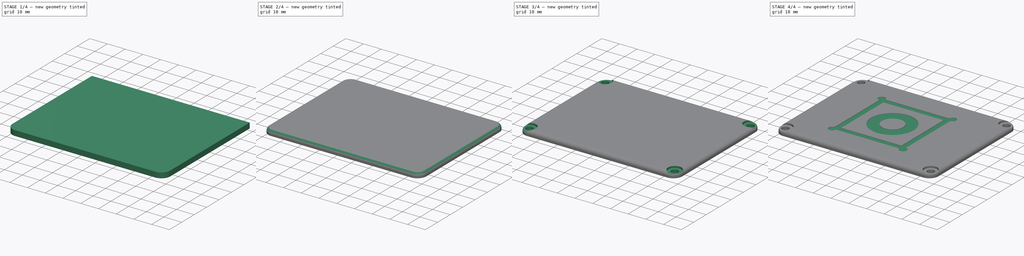
[diagram: build sequence overview — one tinted view per stage of 4, left to right]
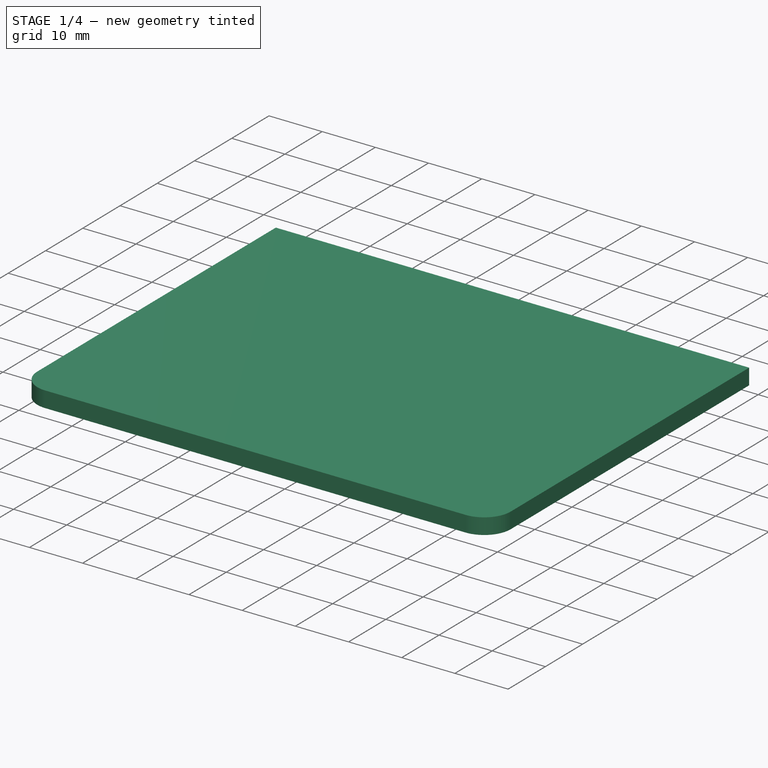
[diagram: stage 1 of 4 — iso view after this stage's code; geometry added in this stage tinted green]
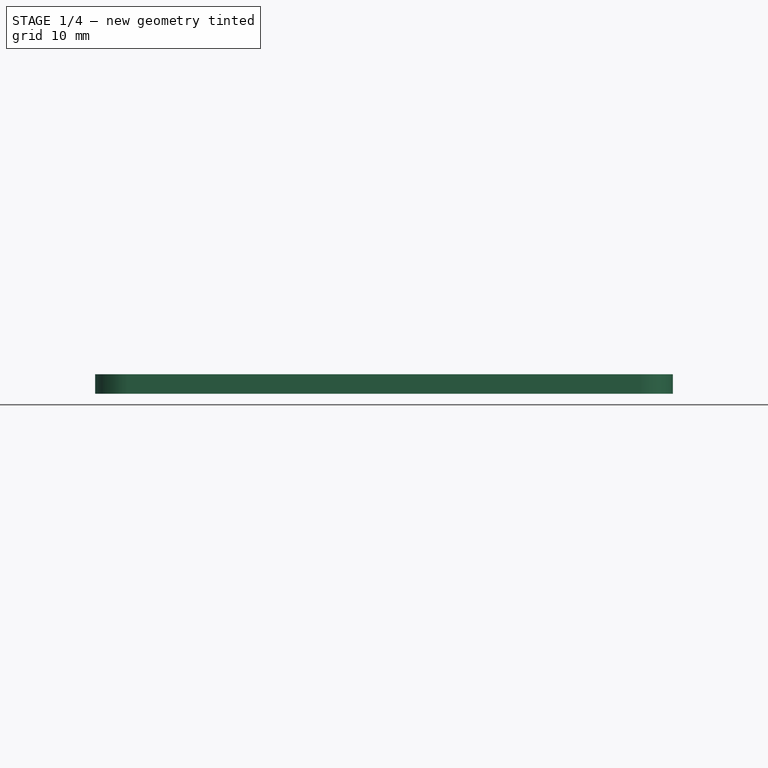
[diagram: stage 1 of 4 — front view after this stage's code; geometry added in this stage tinted green]
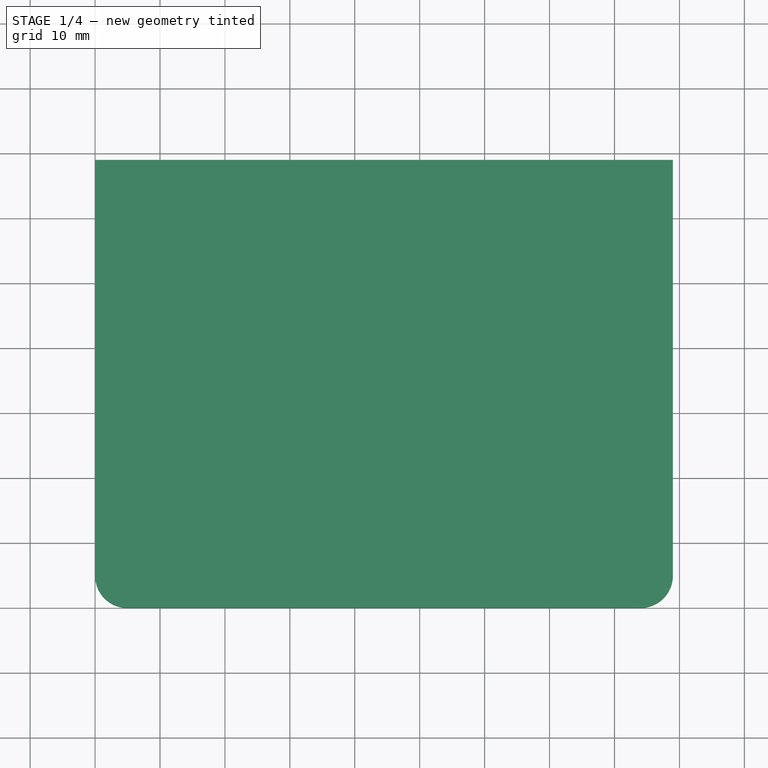
[diagram: stage 1 of 4 — top view after this stage's code; geometry added in this stage tinted green]
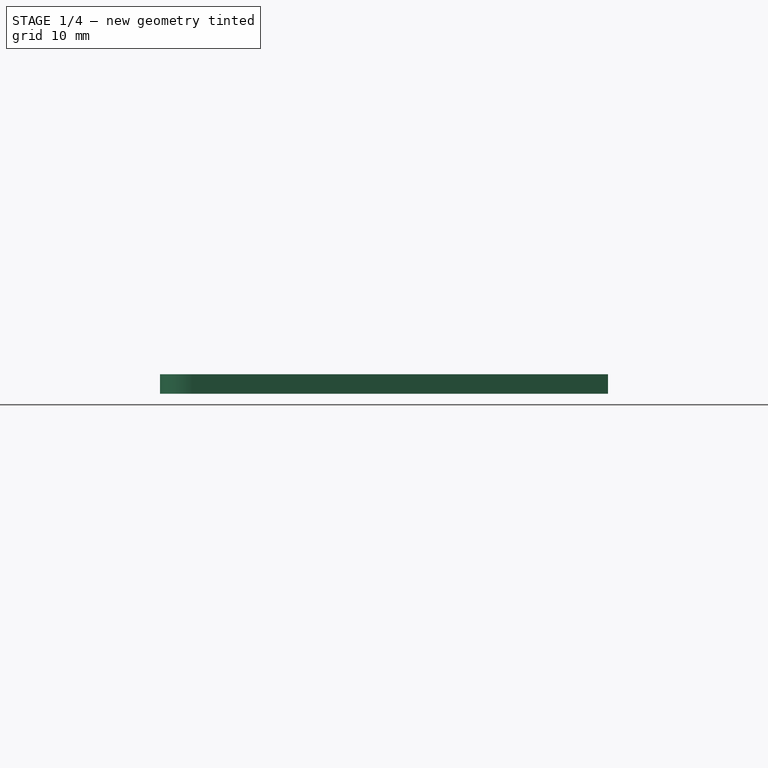
[diagram: stage 1 of 4 — right view after this stage's code; geometry added in this stage tinted green]
FCSTD DOCUMENT  (FreeCAD 0.16R)
Label: top
License: All rights reserved
LicenseURL: http://en.wikipedia.org/wiki/All_rights_reserved
objects: Sketcher::SketchObject×7, PartDesign::Fillet×5, PartDesign::Pocket×5, PartDesign::Pad×2, Part::Box×1, Part::Feature×1
note: 28 computed .brp shape members not serialized (recipe doc carries the construction recipe); baked Part::Feature solids carry a one-line shape summary decoded from their .brp

FEATURE [Part::Box] Box  label="Куб"
  Height = 3
  Length = 89
  Width = 69
FEATURE [PartDesign::Fillet] Fillet
  Base = -> Box [Edge5]
  Radius = 5
FEATURE [PartDesign::Fillet] Fillet001
  Base = -> Fillet [Edge15]
  Radius = 5
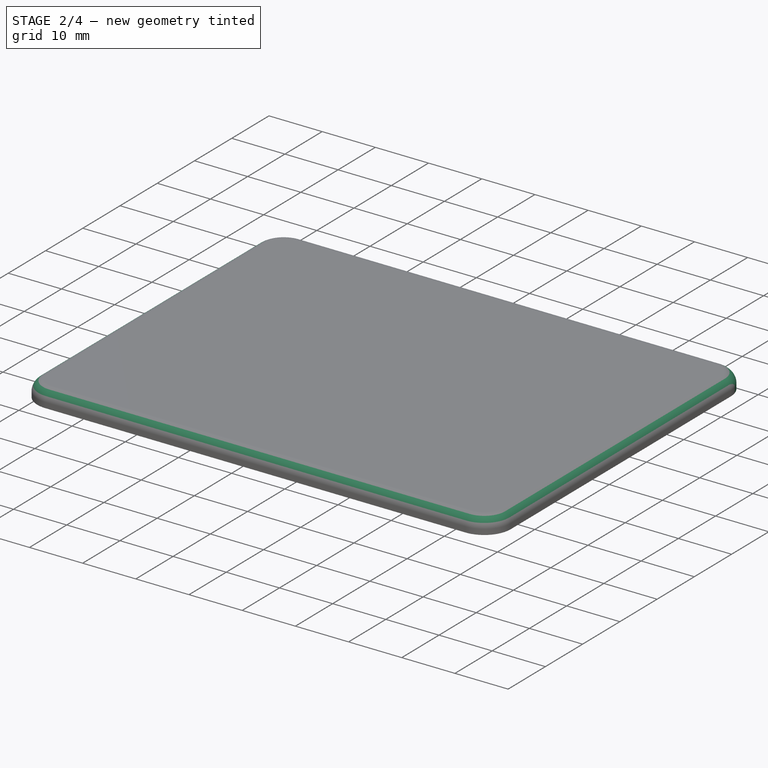
[diagram: stage 2 of 4 — iso view after this stage's code; geometry added in this stage tinted green]
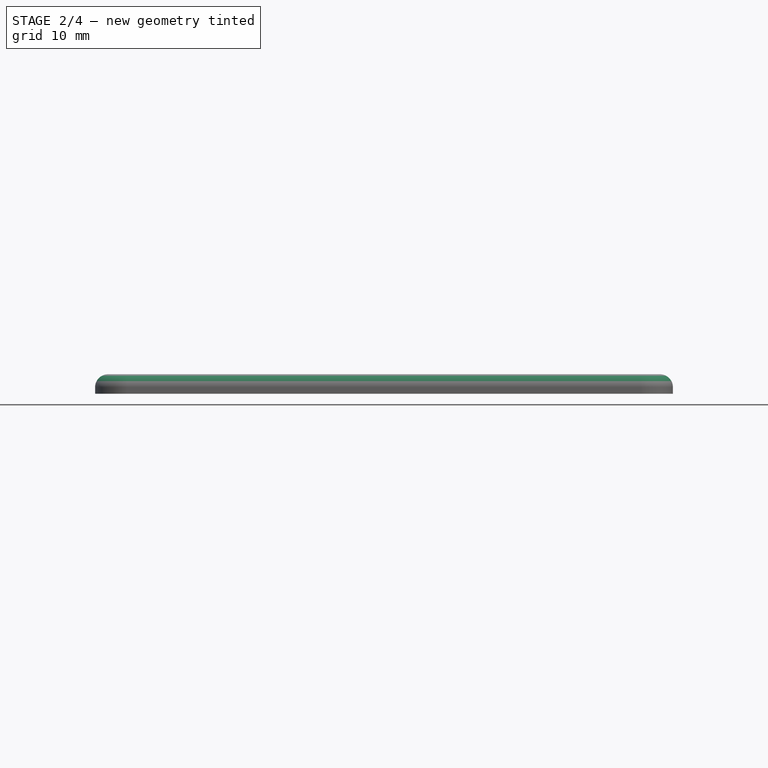
[diagram: stage 2 of 4 — front view after this stage's code; geometry added in this stage tinted green]
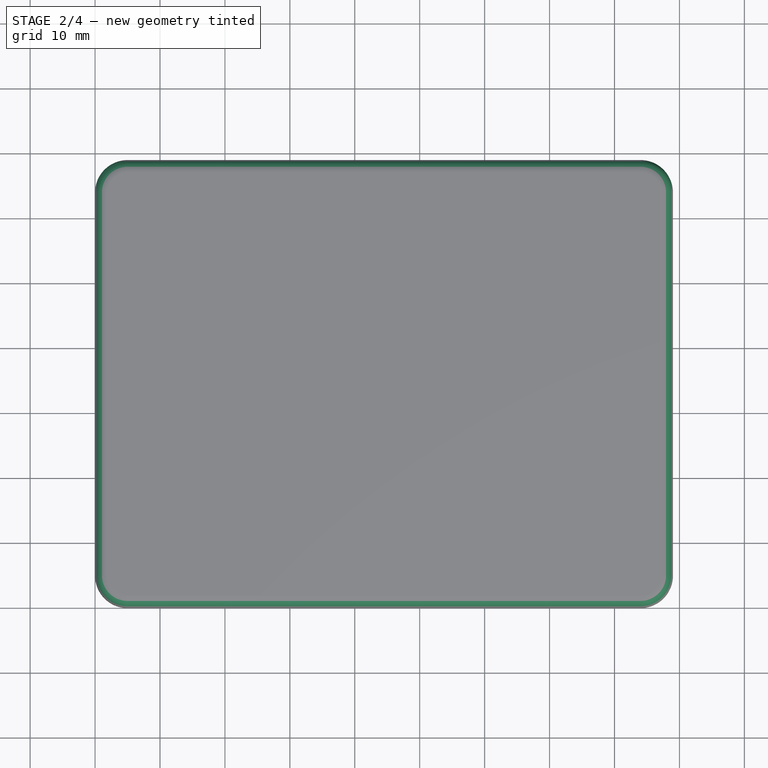
[diagram: stage 2 of 4 — top view after this stage's code; geometry added in this stage tinted green]
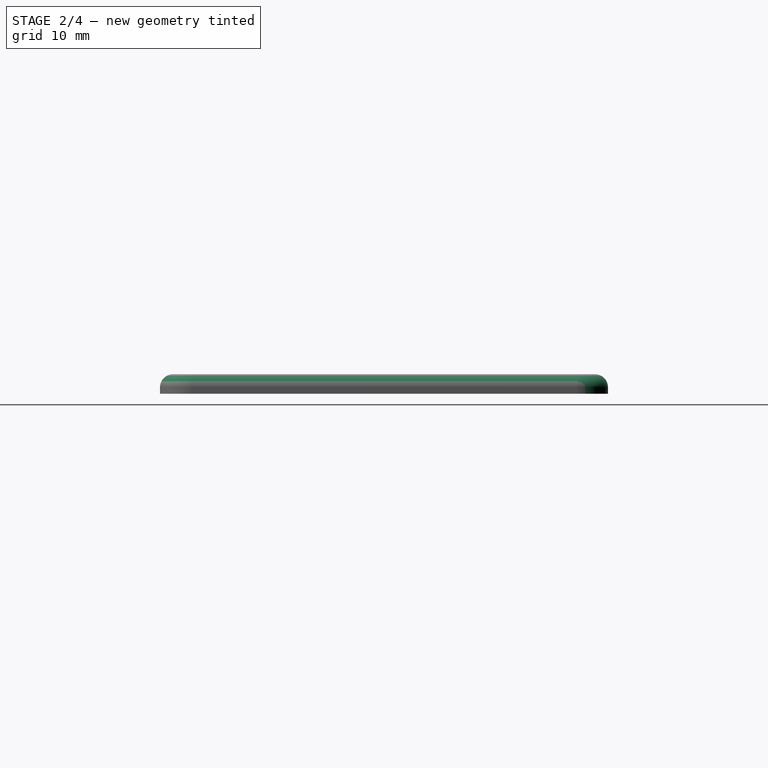
[diagram: stage 2 of 4 — right view after this stage's code; geometry added in this stage tinted green]
FEATURE [PartDesign::Fillet] Fillet002
  Base = -> Fillet001 [Edge16]
  Radius = 5
FEATURE [PartDesign::Fillet] Fillet003
  Base = -> Fillet002 [Edge16]
  Radius = 5
FEATURE [PartDesign::Fillet] Fillet004
  Base = -> Fillet003 [Edge5,Edge3,Edge1]
  Radius = 2
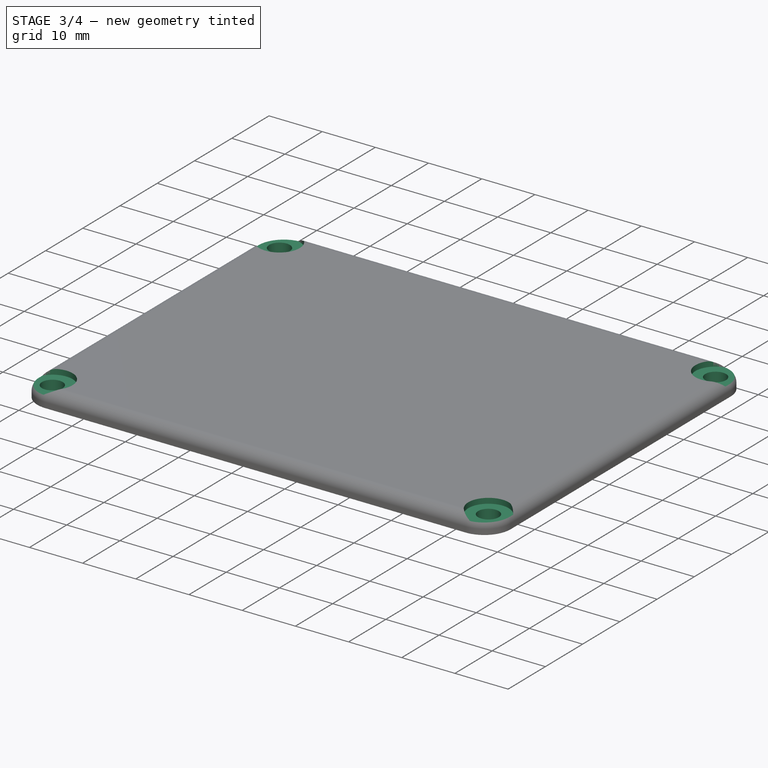
[diagram: stage 3 of 4 — iso view after this stage's code; geometry added in this stage tinted green]
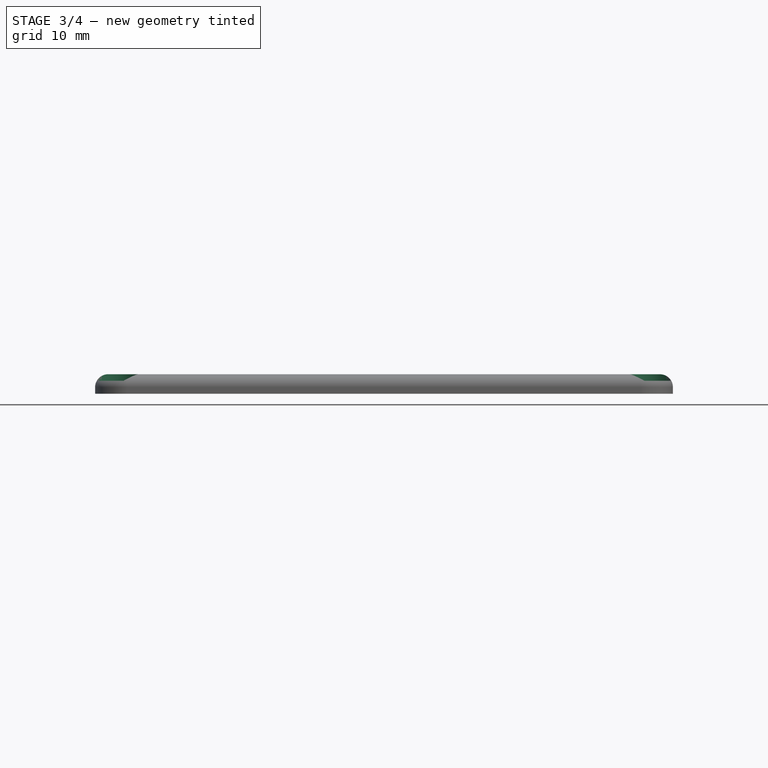
[diagram: stage 3 of 4 — front view after this stage's code; geometry added in this stage tinted green]
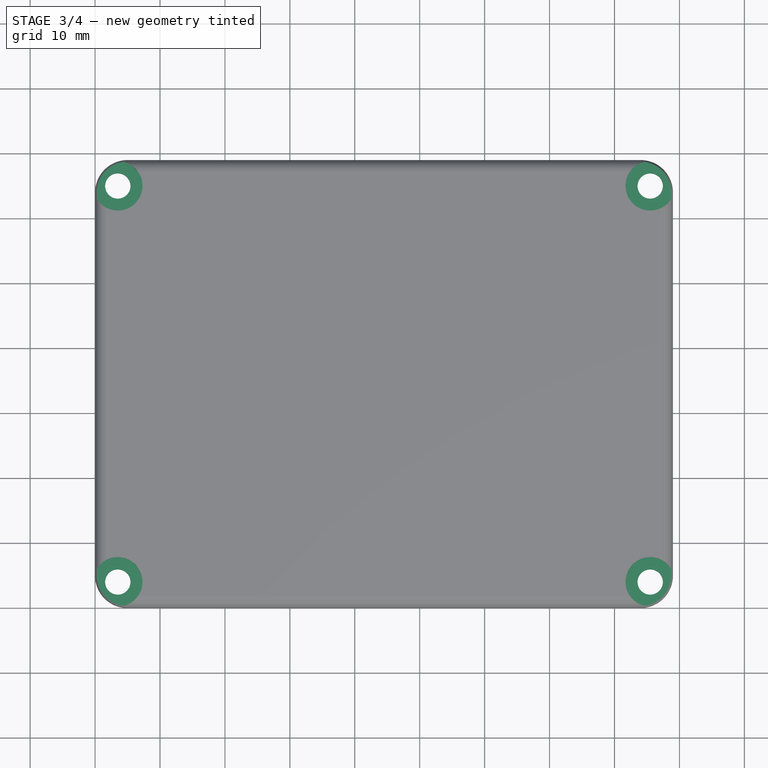
[diagram: stage 3 of 4 — top view after this stage's code; geometry added in this stage tinted green]
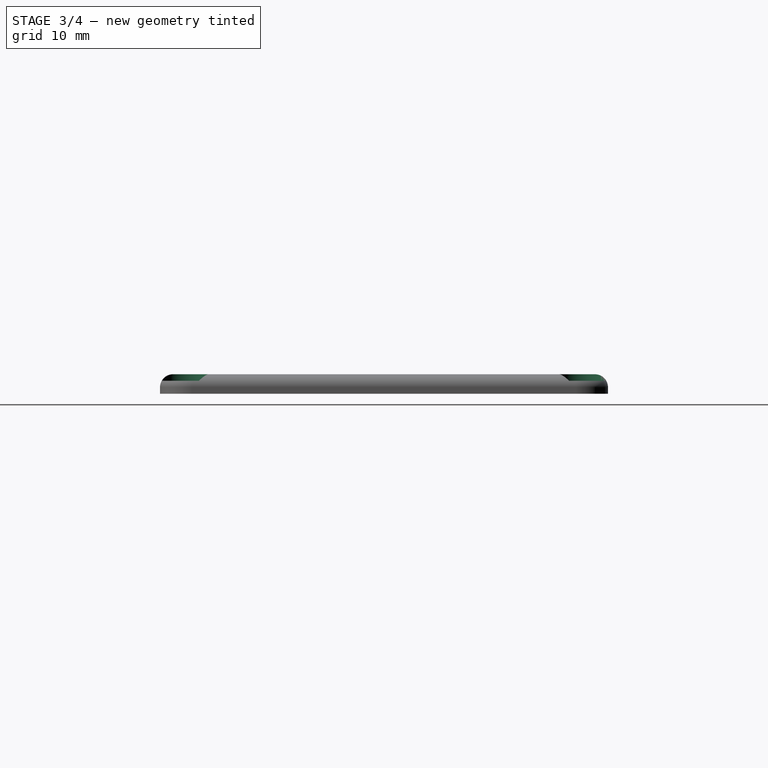
[diagram: stage 3 of 4 — right view after this stage's code; geometry added in this stage tinted green]
FEATURE [Sketcher::SketchObject] Sketch
  ExternalGeometry = -> [Fillet004]
  Placement = pos=(0,0,0) rot=(1,0,0;3.14159rad)
  Support = -> Fillet004 [Face18]
  sketch-geometry (8):
    g0: LineSegment StartX=7 StartY=-5 StartZ=0 EndX=82 EndY=-5 EndZ=0
    g1: LineSegment StartX=84 StartY=-7 StartZ=0 EndX=84 EndY=-62 EndZ=0
    g2: LineSegment StartX=82 StartY=-64 StartZ=0 EndX=7 EndY=-64 EndZ=0
    g3: LineSegment StartX=5 StartY=-62 StartZ=0 EndX=5 EndY=-7 EndZ=0
    g4: ArcOfCircle CenterX=7 CenterY=-7 CenterZ=0 NormalX=0 NormalY=0 NormalZ=1 Radius=2 StartAngle=1.5708 EndAngle=3.14159
    g5: ArcOfCircle CenterX=82 CenterY=-7 CenterZ=0 NormalX=0 NormalY=0 NormalZ=1 Radius=2 StartAngle=0 EndAngle=1.5708
    g6: ArcOfCircle CenterX=82 CenterY=-62 CenterZ=0 NormalX=0 NormalY=0 NormalZ=1 Radius=2 StartAngle=4.71239 EndAngle=6.28319
    g7: ArcOfCircle CenterX=7 CenterY=-62 CenterZ=0 NormalX=0 NormalY=0 NormalZ=1 Radius=2 StartAngle=3.14159 EndAngle=4.71239
  constraints (20):
    c: Horizontal(g0)
    c: Horizontal(g2)
    c: Vertical(g1)
    c: Vertical(g3)
    c: Tangent(g0,g4) = 1.5708
    c: Tangent(g3,g4) = 1.5708
    c: Tangent(g0,g5) = 1.5708
    c: Tangent(g1,g5) = 1.5708
    c: Tangent(g1,g6) = 1.5708
    c: Tangent(g2,g6) = 1.5708
    c: Tangent(g2,g7) = 1.5708
    c: Tangent(g3,g7) = 1.5708
    c: Radius(g4) = 2
    c: Radius(g5) = 2
    c: Radius(g7) = 2
    c: Radius(g6) = 2
    c: DistanceX(g1,g-5) = 5
    c: DistanceY(g0,g-6) = 5
    c: DistanceX(g-3,g3) = 5
    c: DistanceY(g-4,g2) = 5
FEATURE [PartDesign::Pocket] Pocket
  Length = 1.5
  Sketch = -> Sketch
  Type = 0
FEATURE [Sketcher::SketchObject] Sketch001
  ExternalGeometry = -> [Pocket]
  Placement = pos=(0,0,0) rot=(1,0,0;3.14159rad)
  Support = -> Pocket [Face18]
  sketch-geometry (5):
    g0: Circle CenterX=3.5 CenterY=-4 CenterZ=0 NormalX=0 NormalY=0 NormalZ=1 Radius=1.95
    g1: Circle CenterX=85.5 CenterY=-4 CenterZ=0 NormalX=0 NormalY=0 NormalZ=1 Radius=1.95
    g2: Circle CenterX=3.5 CenterY=-65 CenterZ=0 NormalX=0 NormalY=0 NormalZ=1 Radius=1.95
    g3: Circle CenterX=85.5 CenterY=-65 CenterZ=0 NormalX=0 NormalY=0 NormalZ=1 Radius=1.95
    g4: GeomPoint [constr] X=44.5 Y=-34.5 Z=0
  constraints (14):
    c: DistanceX(g0,g1) = 82
    c: DistanceX(g2,g3) = 82
    c: DistanceY(g3,g1) = 61
    c: DistanceY(g2,g0) = 61
    c: Radius(g1) = 1.95
    c: Radius(g0) = 1.95
    c: Radius(g2) = 1.95
    c: Radius(g3) = 1.95
    c: DistanceX(g4,g-4) = 39.5
    c: DistanceY(g4,g-3) = 29.5
    c: DistanceX(g2,g4) = 41
    c: DistanceY(g2,g4) = 30.5
    c: DistanceX(g4,g1) = 41
    c: DistanceY(g4,g1) = 30.5
FEATURE [PartDesign::Pocket] Pocket001
  Length = 3
  Sketch = -> Sketch001
  Type = 0
FEATURE [Sketcher::SketchObject] Sketch002
  ExternalGeometry = -> [Pocket001]
  Placement = pos=(0,0,0) rot=(1,0,0;3.14159rad)
  Support = -> Pocket001 [Face14]
  sketch-geometry (16):
    g0: LineSegment StartX=8.5 StartY=-1.75 StartZ=0 EndX=80.5 EndY=-1.75 EndZ=0
    g1: LineSegment StartX=80.5 StartY=-1.75 StartZ=0 EndX=80.5 EndY=-3.25 EndZ=0
    g2: LineSegment StartX=80.5 StartY=-3.25 StartZ=0 EndX=8.5 EndY=-3.25 EndZ=0
    g3: LineSegment StartX=8.5 StartY=-3.25 StartZ=0 EndX=8.5 EndY=-1.75 EndZ=0
    g4: LineSegment StartX=85.75 StartY=-8.5 StartZ=0 EndX=87.25 EndY=-8.5 EndZ=0
    g5: LineSegment StartX=87.25 StartY=-8.5 StartZ=0 EndX=87.25 EndY=-60.5 EndZ=0
    g6: LineSegment StartX=87.25 StartY=-60.5 StartZ=0 EndX=85.75 EndY=-60.5 EndZ=0
    g7: LineSegment StartX=85.75 StartY=-60.5 StartZ=0 EndX=85.75 EndY=-8.5 EndZ=0
    g8: LineSegment StartX=8.5 StartY=-65.75 StartZ=0 EndX=80.5 EndY=-65.75 EndZ=0
    g9: LineSegment StartX=80.5 StartY=-65.75 StartZ=0 EndX=80.5 EndY=-67.25 EndZ=0
    g10: LineSegment StartX=80.5 StartY=-67.25 StartZ=0 EndX=8.5 EndY=-67.25 EndZ=0
    g11: LineSegment StartX=8.5 StartY=-67.25 StartZ=0 EndX=8.5 EndY=-65.75 EndZ=0
    g12: LineSegment StartX=1.75 StartY=-8.5 StartZ=0 EndX=3.25 EndY=-8.5 EndZ=0
    g13: LineSegment StartX=3.25 StartY=-8.5 StartZ=0 EndX=3.25 EndY=-60.5 EndZ=0
    g14: LineSegment StartX=3.25 StartY=-60.5 StartZ=0 EndX=1.75 EndY=-60.5 EndZ=0
    g15: LineSegment StartX=1.75 StartY=-60.5 StartZ=0 EndX=1.75 EndY=-8.5 EndZ=0
  constraints (48):
    c: Coincident(g0,g1)
    c: Coincident(g1,g2)
    c: Coincident(g2,g3)
    c: Coincident(g3,g0)
    c: Horizontal(g0)
    c: Horizontal(g2)
    c: Vertical(g1)
    c: Vertical(g3)
    c: Coincident(g4,g5)
    c: Coincident(g5,g6)
    c: Coincident(g6,g7)
    c: Coincident(g7,g4)
    c: Horizontal(g4)
    c: Horizontal(g6)
    c: Vertical(g5)
    c: Vertical(g7)
    c: Coincident(g8,g9)
    c: Coincident(g9,g10)
    c: Coincident(g10,g11)
    c: Coincident(g11,g8)
    c: Horizontal(g8)
    c: Horizontal(g10)
    c: Vertical(g9)
    c: Vertical(g11)
    c: Coincident(g12,g13)
    c: Coincident(g13,g14)
    c: Coincident(g14,g15)
    c: Coincident(g15,g12)
    c: Horizontal(g12)
    c: Horizontal(g14)
    c: Vertical(g13)
    c: Vertical(g15)
    c: DistanceX(g0,g0) = 72
    c: DistanceY(g0,g-3) = 1.75
    c: DistanceY(g1,g0) = 1.5
    c: DistanceX(g6,g5) = 1.5
    c: DistanceX(g4,g-5) = 1.75
    c: DistanceY(g5,g5) = 52
    c: DistanceY(g-6,g10) = 1.75
    c: DistanceY(g10,g8) = 1.5
    c: DistanceX(g10,g10) = 72
    c: DistanceX(g-4,g12) = 1.75
    c: DistanceX(g12,g12) = 1.5
    c: DistanceY(g15,g15) = 52
    c: DistanceX(g9,g-6) = 3.5
    c: DistanceY(g-4,g14) = 3.5
    c: DistanceX(g-3,g0) = 3.5
    c: DistanceY(g4,g-5) = 3.5
FEATURE [PartDesign::Pocket] Pocket002
  Length = 1
  Sketch = -> Sketch002
  Type = 0
FEATURE [Sketcher::SketchObject] Sketch003
  ExternalGeometry = -> [Pocket002]
  Placement = pos=(0,0,3) rot=(0,0,1;0rad)
  Support = -> Pocket002 [Face1]
  sketch-geometry (4):
    g0: Circle CenterX=3.5 CenterY=65 CenterZ=0 NormalX=0 NormalY=0 NormalZ=1 Radius=3.8
    g1: Circle CenterX=85.5 CenterY=65 CenterZ=0 NormalX=0 NormalY=0 NormalZ=1 Radius=3.8
    g2: Circle CenterX=85.5 CenterY=4 CenterZ=0 NormalX=0 NormalY=0 NormalZ=1 Radius=3.8
    g3: Circle CenterX=3.5 CenterY=4 CenterZ=0 NormalX=0 NormalY=0 NormalZ=1 Radius=3.8
  constraints (8):
    c: Coincident(g0,g-3)
    c: Coincident(g1,g-4)
    c: Coincident(g2,g-5)
    c: Coincident(g3,g-6)
    c: Radius(g0) = 3.8
    c: Radius(g1) = 3.8
    c: Radius(g3) = 3.8
    c: Radius(g2) = 3.8
FEATURE [PartDesign::Pocket] Pocket003
  Length = 1
  Sketch = -> Sketch003
  Type = 0
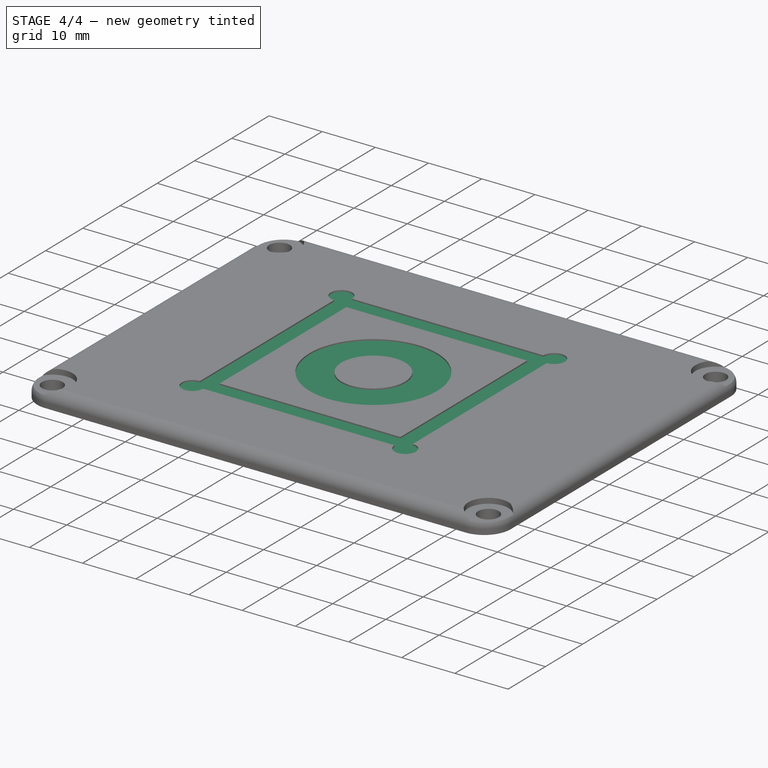
[diagram: stage 4 of 4 — iso view after this stage's code; geometry added in this stage tinted green]
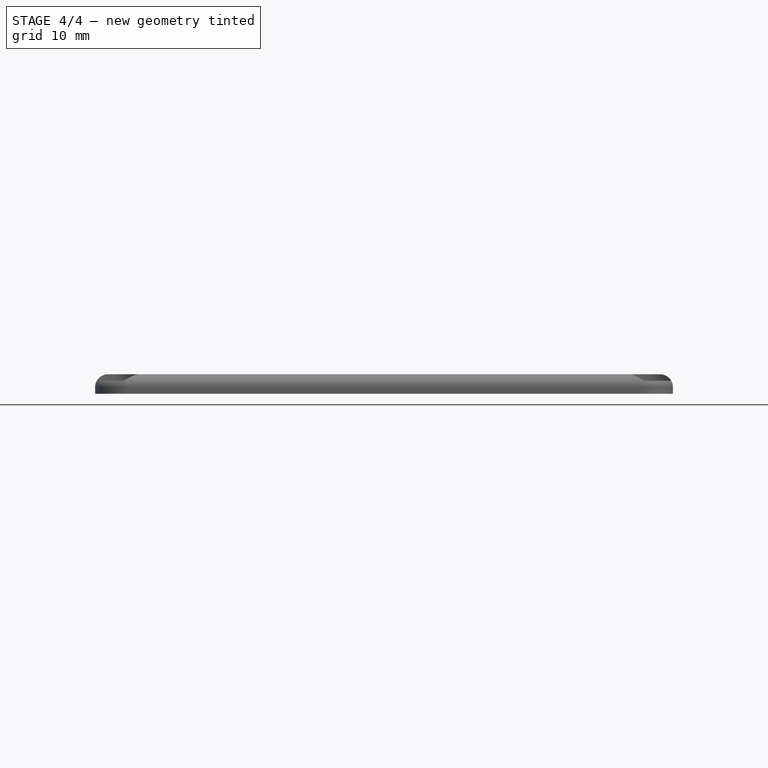
[diagram: stage 4 of 4 — front view after this stage's code; geometry added in this stage tinted green]
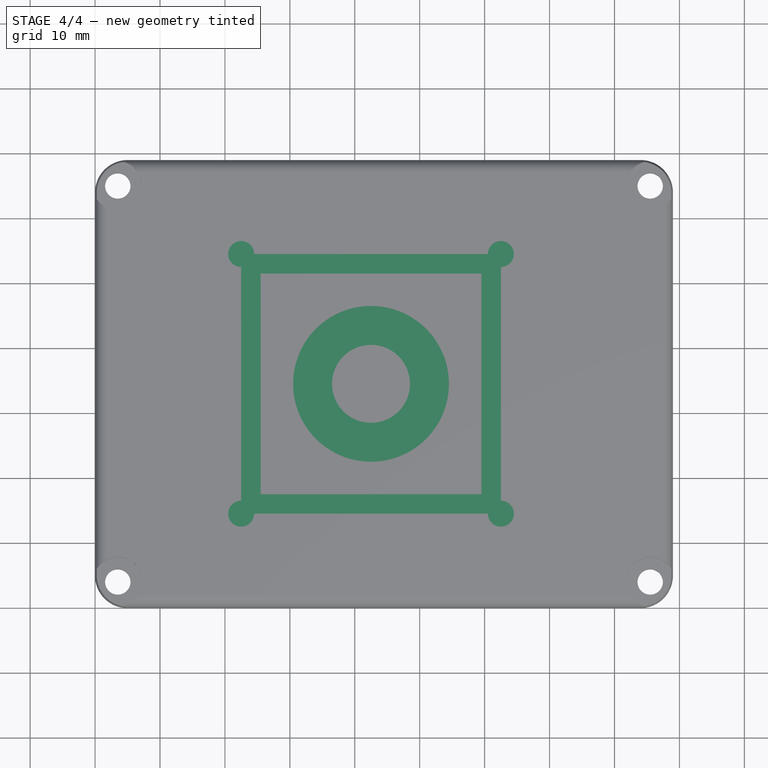
[diagram: stage 4 of 4 — top view after this stage's code; geometry added in this stage tinted green]
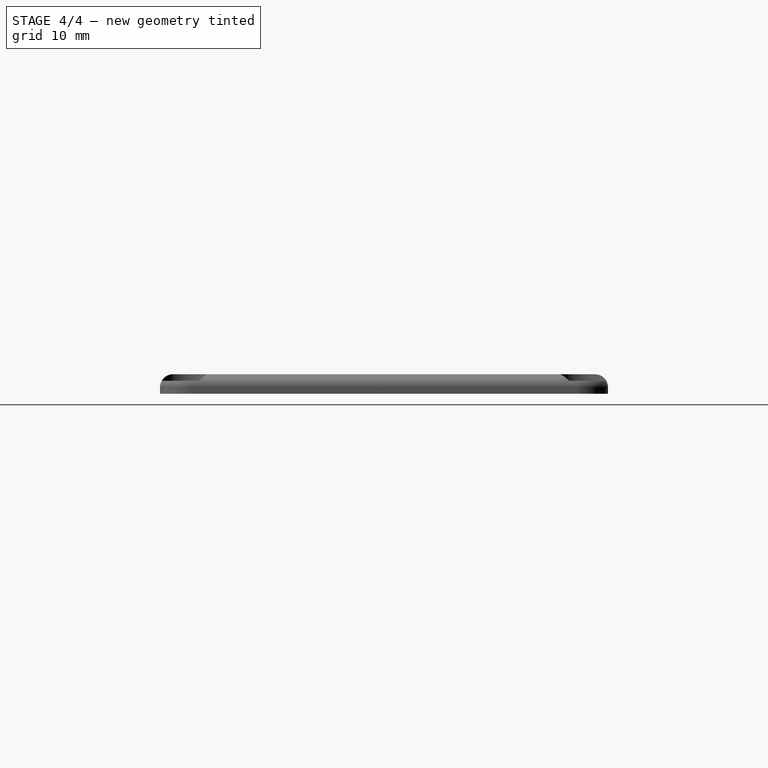
[diagram: stage 4 of 4 — right view after this stage's code; geometry added in this stage tinted green]
FEATURE [Sketcher::SketchObject] Sketch004
  ExternalGeometry = -> [Pocket003]
  Placement = pos=(0,0,3) rot=(0,0,1;0rad)
  Support = -> Pocket003 [Face1]
  sketch-geometry (8):
    g0: LineSegment StartX=24.5 StartY=54.5 StartZ=0 EndX=60.5 EndY=54.5 EndZ=0
    g1: LineSegment StartX=62.5 StartY=52.5 StartZ=0 EndX=62.5 EndY=16.5 EndZ=0
    g2: LineSegment StartX=60.5 StartY=14.5 StartZ=0 EndX=24.4997 EndY=14.5 EndZ=0
    g3: LineSegment StartX=22.5 StartY=16.5 StartZ=0 EndX=22.5 EndY=52.5 EndZ=0
    g4: ArcOfCircle CenterX=22.5 CenterY=54.5 CenterZ=0 NormalX=0 NormalY=0 NormalZ=1 Radius=2 StartAngle=6.28318 EndAngle=10.9956
    g5: ArcOfCircle CenterX=62.5 CenterY=54.5 CenterZ=0 NormalX=0 NormalY=0 NormalZ=1 Radius=2 StartAngle=4.71239 EndAngle=9.42478
    g6: ArcOfCircle CenterX=22.4997 CenterY=14.5 CenterZ=0 NormalX=0 NormalY=0 NormalZ=1 Radius=2 StartAngle=1.57064 EndAngle=6.28319
    g7: ArcOfCircle CenterX=62.5 CenterY=14.5 CenterZ=0 NormalX=0 NormalY=0 NormalZ=1 Radius=2 StartAngle=3.14159 EndAngle=7.85398
  constraints (28):
    c: Horizontal(g0)
    c: Horizontal(g2)
    c: Vertical(g1)
    c: Vertical(g3)
    c: Equal(g0,g3)
    c: Radius(g4) = 2
    c: Radius(g6) = 2
    c: Radius(g7) = 2
    c: Radius(g5) = 2
    c: Coincident(g3,g4)
    c: Coincident(g0,g4)
    c: Coincident(g1,g5)
    c: Coincident(g0,g5)
    c: Coincident(g2,g7)
    c: Coincident(g1,g7)
    c: Coincident(g3,g6)
    c: Coincident(g2,g6)
    c: DistanceY(g2,g3) = 2
    c: DistanceY(g2,g1) = 2
    c: DistanceX(g6,g2) = 2
    c: DistanceX(g2,g7) = 2
    c: DistanceY(g1,g5) = 2
    c: DistanceX(g0,g5) = 2
    c: DistanceX(g4,g0) = 2
    c: DistanceY(g3,g4) = 2
    c: DistanceX(g0,g0) = 36
    c: DistanceX(g-3,g0) = 22.5
    c: DistanceY(g0,g-4) = 12.5
FEATURE [PartDesign::Pocket] Pocket004
  Length = 0.25
  Sketch = -> Sketch004
  Type = 0
FEATURE [Sketcher::SketchObject] Sketch005
  ExternalGeometry = -> [Pocket004]
  Placement = pos=(0,0,2.75) rot=(0,0,1;0rad)
  Support = -> Pocket004 [Face32]
  sketch-geometry (5):
    g0: LineSegment StartX=25.5 StartY=51.5 StartZ=0 EndX=59.5 EndY=51.5 EndZ=0
    g1: LineSegment StartX=59.5 StartY=51.5 StartZ=0 EndX=59.5 EndY=17.5 EndZ=0
    g2: LineSegment StartX=59.5 StartY=17.5 StartZ=0 EndX=25.5 EndY=17.5 EndZ=0
    g3: LineSegment StartX=25.5 StartY=17.5 StartZ=0 EndX=25.5 EndY=51.5 EndZ=0
    g4: Circle CenterX=42.5 CenterY=34.5 CenterZ=0 NormalX=0 NormalY=0 NormalZ=1 Radius=12
  constraints (15):
    c: Coincident(g0,g1)
    c: Coincident(g1,g2)
    c: Coincident(g2,g3)
    c: Coincident(g3,g0)
    c: Horizontal(g0)
    c: Horizontal(g2)
    c: Vertical(g1)
    c: Vertical(g3)
    c: Equal(g2,g1)
    c: DistanceY(g3,g3) = 34
    c: Radius(g4) = 12
    c: DistanceX(g2,g4) = 17
    c: DistanceY(g4,g0) = 17
    c: DistanceY(g0,g-3) = 3
    c: DistanceX(g0,g-4) = 3
FEATURE [PartDesign::Pad] Pad
  Length = 0.25
  Length2 = 100
  Sketch = -> Sketch005
  Type = 0
FEATURE [Sketcher::SketchObject] Sketch006
  ExternalGeometry = -> [Pad]
  Placement = pos=(0,0,2.75) rot=(0,0,1;0rad)
  Support = -> Pad [Face77]
  sketch-geometry (1):
    g0: Circle CenterX=42.5 CenterY=34.5 CenterZ=0 NormalX=0 NormalY=0 NormalZ=1 Radius=6
  constraints (2):
    c: Coincident(g0,g-3)
    c: Radius(g0) = 6
FEATURE [PartDesign::Pad] Pad001
  Length = 0.25
  Length2 = 100
  Sketch = -> Sketch006
  Type = 0
FEATURE [Part::Feature] Pad001001  label="Top"
  shape: bbox 89.82 x 69.82 x 3.42 mm, 79 faces (baked)
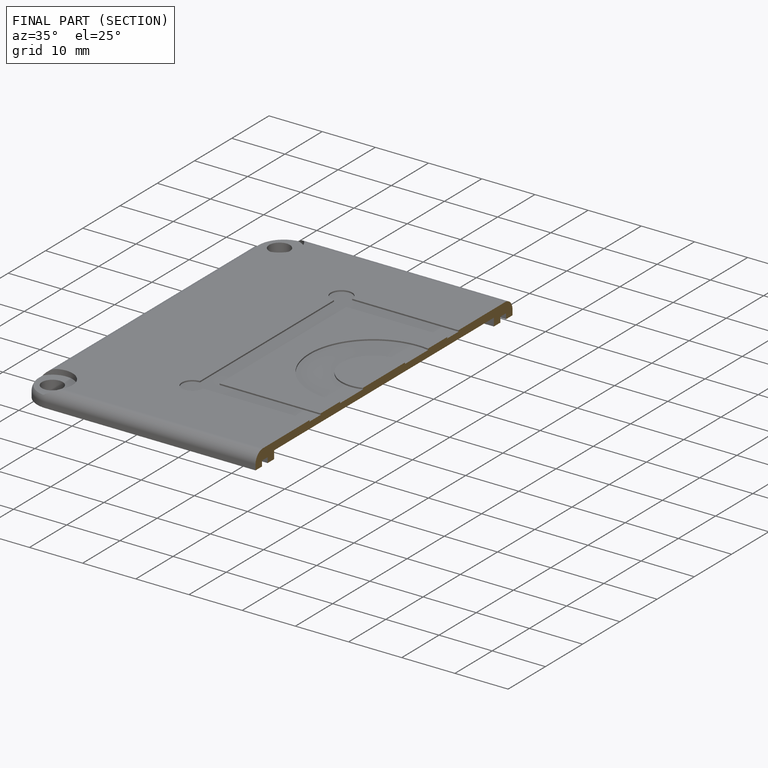
[diagram: finished part — half-section view (interior)]
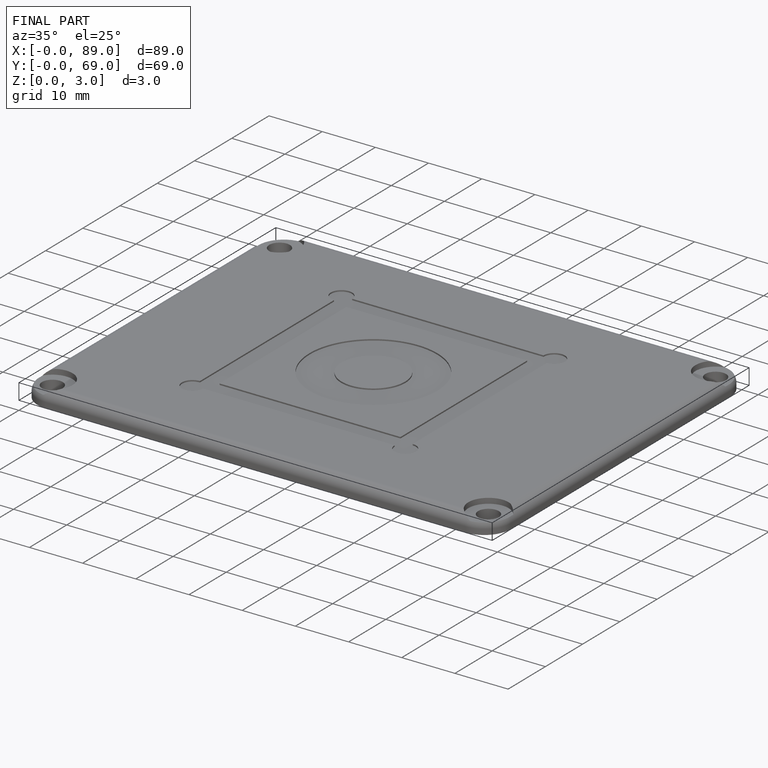
[diagram: finished part — iso view with bounding-box wireframe]
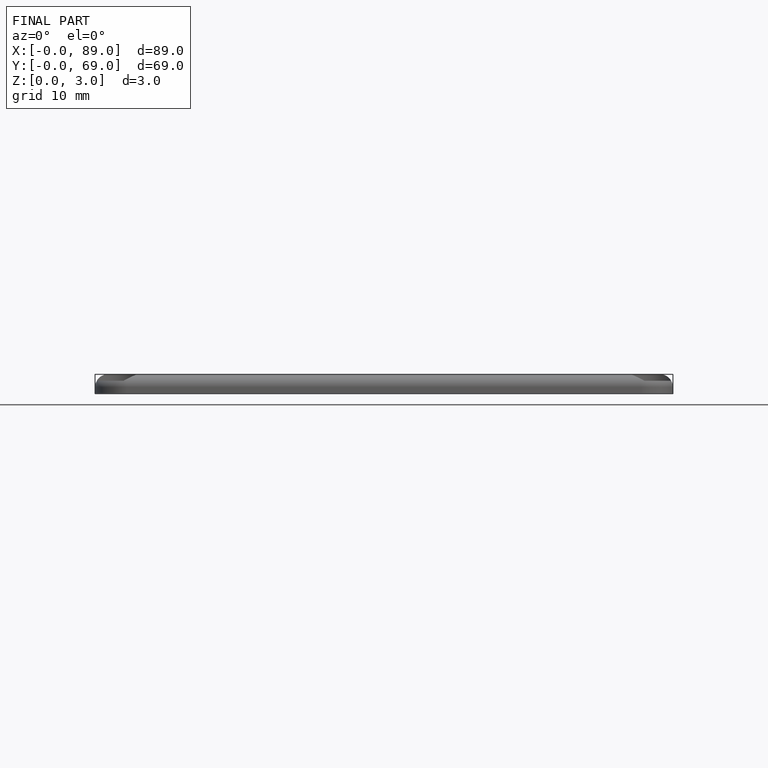
[diagram: finished part — front view with bounding-box wireframe]
